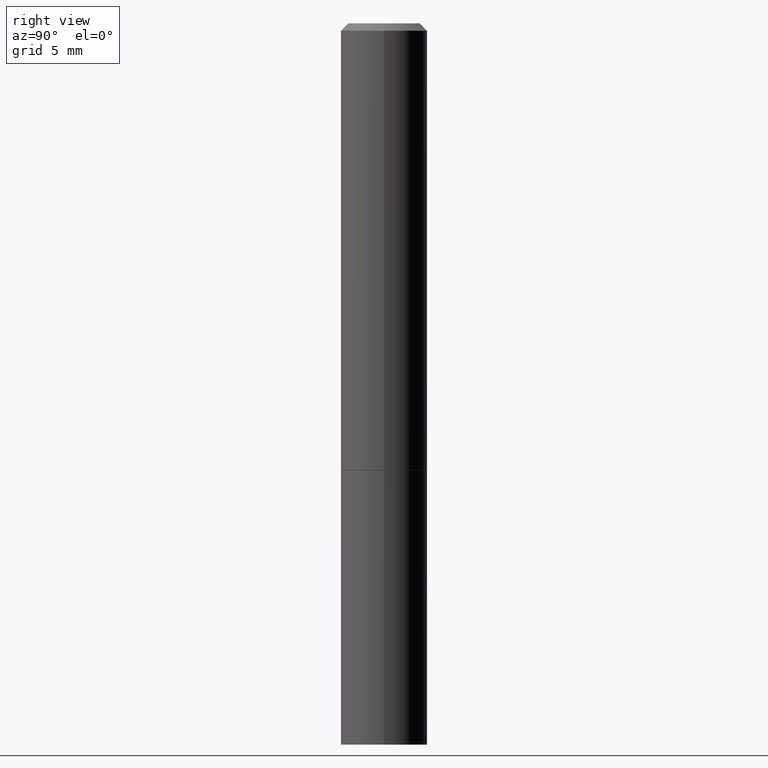
[diagram: clean part render]
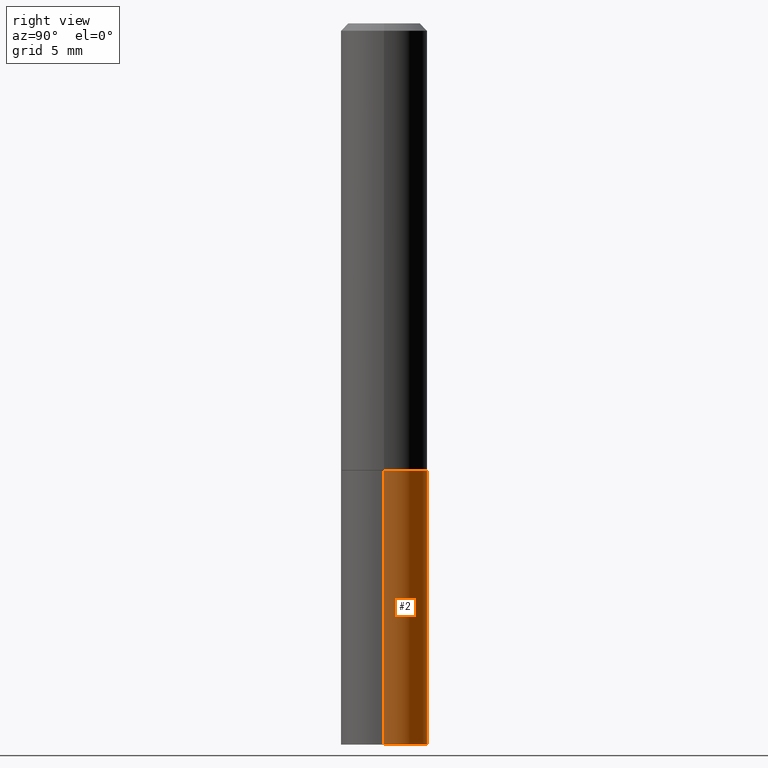
[diagram: same view with one face highlighted and labeled with its STEP entity id]
A machine part, right view. The second image highlights one B-rep face of the part: STEP entity #2.
In plain terms, the highlighted cylindrical surface (partial cylindrical patch) has radius 2.9997 mm, axis along (-0, 0, 1).
Its self-contained STEP definition (entity closure, byte-faithful):
#2 = ADVANCED_FACE ( 'NONE', ( #236 ), #242, .T. ) ;
#20 = CARTESIAN_POINT ( 'NONE',  ( 0.1180999999999999966, -7.697668907747479970E-15, -1.968500000000000139 ) ) ;
#26 = DIRECTION ( 'NONE',  ( 1.000000000000000000, -6.982962677686265133E-15, 0.000000000000000000 ) ) ;
#70 = AXIS2_PLACEMENT_3D ( 'NONE', #185, #189, #261 ) ;
#73 = DIRECTION ( 'NONE',  ( -2.445468806185136877E-29, 3.491481338843145188E-15, 1.000000000000000000 ) ) ;
#82 = DIRECTION ( 'NONE',  ( -2.445468806185136597E-29, 3.491481338843145583E-15, 1.000000000000000000 ) ) ;
#100 = CARTESIAN_POINT ( 'NONE',  ( 0.1180999999999999966, -8.246878922347480654E-16, 5.758764772215000440E-30 ) ) ;
#108 = CARTESIAN_POINT ( 'NONE',  ( 4.813905344975441835E-29, -6.872981015512731707E-15, -1.968500000000000139 ) ) ;
#109 = EDGE_CURVE ( 'NONE', #124, #232, #286, .T. ) ;
#124 = VERTEX_POINT ( 'NONE', #233 ) ;
#127 = VECTOR ( 'NONE', #73, 39.37007874015748143 ) ;
#146 = EDGE_CURVE ( 'NONE', #318, #232, #276, .T. ) ;
#148 = AXIS2_PLACEMENT_3D ( 'NONE', #243, #358, #355 ) ;
#157 = ORIENTED_EDGE ( 'NONE', *, *, #240, .F. ) ;
#165 = VECTOR ( 'NONE', #166, 39.37007874015748143 ) ;
#166 = DIRECTION ( 'NONE',  ( -2.445468806185136877E-29, 3.491481338843145188E-15, 1.000000000000000000 ) ) ;
#171 = ORIENTED_EDGE ( 'NONE', *, *, #146, .T. ) ;
#185 = CARTESIAN_POINT ( 'NONE',  ( 2.984694677948959472E-29, -4.261352974058059028E-15, -1.220499999999999918 ) ) ;
#189 = DIRECTION ( 'NONE',  ( -2.445468806185136597E-29, 3.491481338843145583E-15, 1.000000000000000000 ) ) ;
#191 = CARTESIAN_POINT ( 'NONE',  ( -0.1180999999999999966, 8.391509709326782957E-16, -5.809262341591043784E-30 ) ) ;
#222 = LINE ( 'NONE', #100, #127 ) ;
#226 = ORIENTED_EDGE ( 'NONE', *, *, #109, .F. ) ;
#228 = VERTEX_POINT ( 'NONE', #20 ) ;
#232 = VERTEX_POINT ( 'NONE', #330 ) ;
#233 = CARTESIAN_POINT ( 'NONE',  ( 0.1180999999999999966, -5.086040866292807290E-15, -1.220499999999999918 ) ) ;
#236 = FACE_OUTER_BOUND ( 'NONE', #344, .T. ) ;
#240 = EDGE_CURVE ( 'NONE', #228, #124, #222, .T. ) ;
#242 = CYLINDRICAL_SURFACE ( 'NONE', #148, 0.1180999999999999966 ) ;
#243 = CARTESIAN_POINT ( 'NONE',  ( 0.000000000000000000, 0.000000000000000000, 0.000000000000000000 ) ) ;
#248 = CARTESIAN_POINT ( 'NONE',  ( -0.1180999999999999966, -4.728016023852716776E-15, -1.968500000000000139 ) ) ;
#261 = DIRECTION ( 'NONE',  ( 1.000000000000000000, -6.982962677686265133E-15, 0.000000000000000000 ) ) ;
#276 = LINE ( 'NONE', #191, #165 ) ;
#286 = CIRCLE ( 'NONE', #70, 0.1180999999999999966 ) ;
#306 = CIRCLE ( 'NONE', #357, 0.1180999999999999966 ) ;
#318 = VERTEX_POINT ( 'NONE', #248 ) ;
#330 = CARTESIAN_POINT ( 'NONE',  ( -0.1180999999999999966, -4.728016023852716776E-15, -1.220499999999999918 ) ) ;
#332 = EDGE_CURVE ( 'NONE', #228, #318, #306, .T. ) ;
#344 = EDGE_LOOP ( 'NONE', ( #351, #171, #226, #157 ) ) ;
#351 = ORIENTED_EDGE ( 'NONE', *, *, #332, .T. ) ;
#355 = DIRECTION ( 'NONE',  ( 1.000000000000000000, -6.982962677686266711E-15, 4.876176775795936353E-29 ) ) ;
#357 = AXIS2_PLACEMENT_3D ( 'NONE', #108, #82, #26 ) ;
#358 = DIRECTION ( 'NONE',  ( -2.445468806185136597E-29, 3.491481338843145583E-15, 1.000000000000000000 ) ) ;